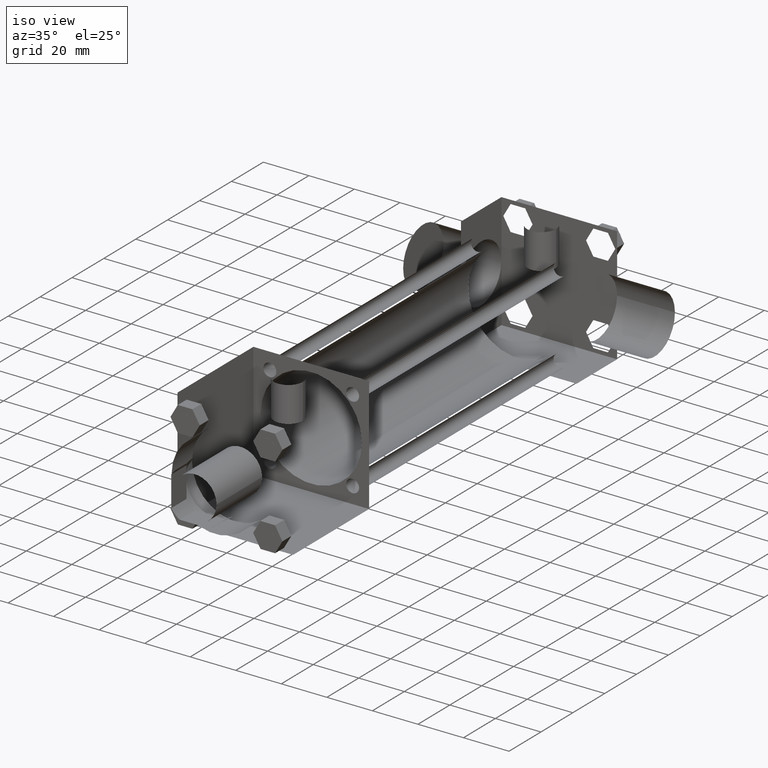
[diagram: clean part render]
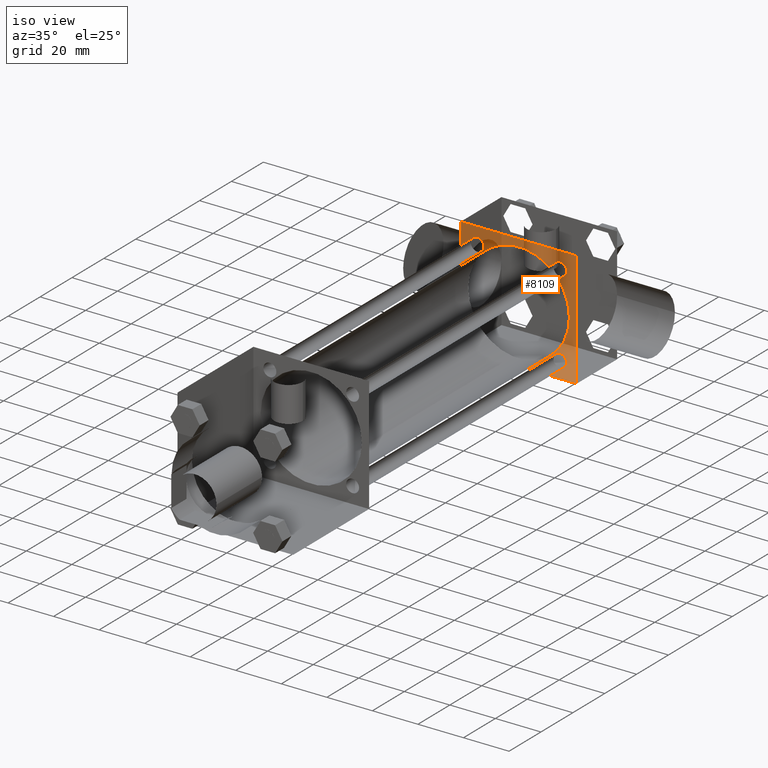
[diagram: same view with one face highlighted and labeled with its STEP entity id]
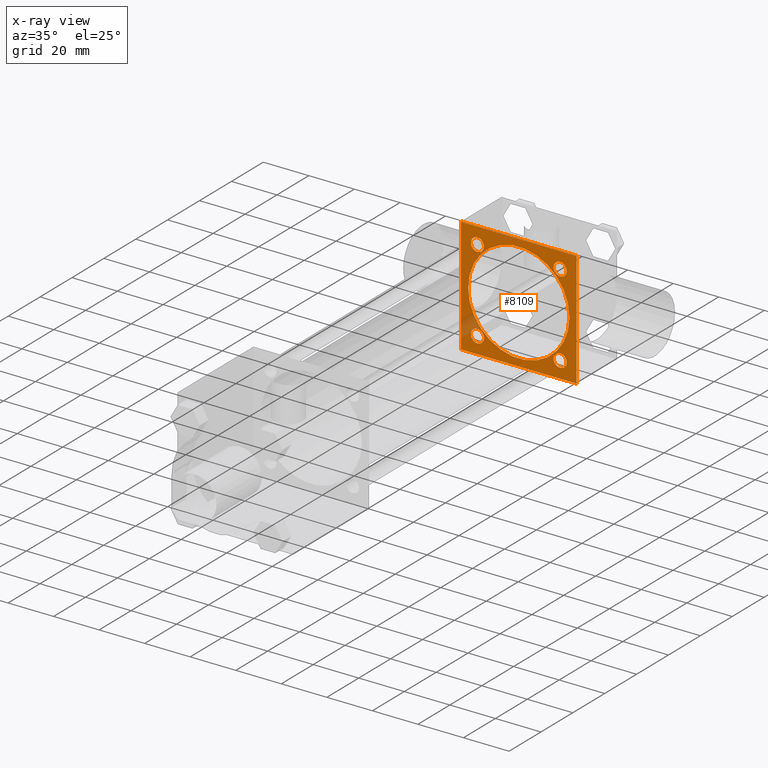
[diagram: x-ray of the same camera — body ghosted, the highlighted face saturated]
A machine part, iso view. The second image highlights one B-rep face of the part: STEP entity #8109.
The next image is the same camera in x-ray: the body ghosted, the highlighted face saturated — about 5% of this face is hidden behind the body in this view.
In plain terms, the highlighted planar face has unit normal (0, 1, 0).
Its self-contained STEP definition (entity closure, byte-faithful):
#2334=EDGE_CURVE('',#2340,#2340,#2335,.T.);
#2335=CIRCLE('',#2336,2.222500000E+001);
#2336=AXIS2_PLACEMENT_3D('',#2337,#2338,#2339);
#2337=CARTESIAN_POINT('',(0.000000000E+000,2.032000000E+002,0.000000000E+000));
#2338=DIRECTION('',(0.0E+000,1.0E+000,0.0E+000));
#2339=DIRECTION('',(1.0E+000,0.0E+000,0.0E+000));
#2340=VERTEX_POINT('',#2341);
#2341=CARTESIAN_POINT('',(2.222500000E+001,2.032000000E+002,0.000000000E+000));
#2416=EDGE_CURVE('',#2422,#2422,#2417,.T.);
#2417=CIRCLE('',#2418,2.857500000E+000);
#2418=AXIS2_PLACEMENT_3D('',#2419,#2420,#2421);
#2419=CARTESIAN_POINT('',(1.816100000E+001,2.032000000E+002,1.816100000E+001));
#2420=DIRECTION('',(0.0E+000,-1.0E+000,0.0E+000));
#2421=DIRECTION('',(-1.0E+000,0.0E+000,0.0E+000));
#2422=VERTEX_POINT('',#2423);
#2423=CARTESIAN_POINT('',(1.530350000E+001,2.032000000E+002,1.816100000E+001));
#2424=EDGE_CURVE('',#2430,#2430,#2425,.T.);
#2425=CIRCLE('',#2426,2.857500000E+000);
#2426=AXIS2_PLACEMENT_3D('',#2427,#2428,#2429);
#2427=CARTESIAN_POINT('',(-1.816100000E+001,2.032000000E+002,-1.816100000E+001));
#2428=DIRECTION('',(0.0E+000,1.0E+000,0.0E+000));
#2429=DIRECTION('',(1.0E+000,0.0E+000,0.0E+000));
#2430=VERTEX_POINT('',#2431);
#2431=CARTESIAN_POINT('',(-1.530350000E+001,2.032000000E+002,-1.816100000E+001));
#2440=EDGE_CURVE('',#2446,#2446,#2441,.T.);
#2441=CIRCLE('',#2442,2.857500000E+000);
#2442=AXIS2_PLACEMENT_3D('',#2443,#2444,#2445);
#2443=CARTESIAN_POINT('',(1.816100000E+001,2.032000000E+002,-1.816100000E+001));
#2444=DIRECTION('',(0.0E+000,1.0E+000,0.0E+000));
#2445=DIRECTION('',(1.0E+000,0.0E+000,0.0E+000));
#2446=VERTEX_POINT('',#2447);
#2447=CARTESIAN_POINT('',(2.101850000E+001,2.032000000E+002,-1.816100000E+001));
#2456=EDGE_CURVE('',#2462,#2462,#2457,.T.);
#2457=CIRCLE('',#2458,2.857500000E+000);
#2458=AXIS2_PLACEMENT_3D('',#2459,#2460,#2461);
#2459=CARTESIAN_POINT('',(-1.816100000E+001,2.032000000E+002,1.816100000E+001));
#2460=DIRECTION('',(0.0E+000,1.0E+000,0.0E+000));
#2461=DIRECTION('',(1.0E+000,0.0E+000,0.0E+000));
#2462=VERTEX_POINT('',#2463);
#2463=CARTESIAN_POINT('',(-1.530350000E+001,2.032000000E+002,1.816100000E+001));
#4563=FACE_OUTER_BOUND('',#4569,.T.);
#4564=FACE_BOUND('',#4570,.T.);
#4565=FACE_BOUND('',#4571,.T.);
#4566=FACE_BOUND('',#4572,.T.);
#4567=FACE_BOUND('',#4573,.T.);
#4568=FACE_BOUND('',#4574,.T.);
#4569=EDGE_LOOP('',(#4575));
#4570=EDGE_LOOP('',(#4576));
#4571=EDGE_LOOP('',(#4585));
#4572=EDGE_LOOP('',(#4594));
#4573=EDGE_LOOP('',(#4603,#4604,#4605,#4606));
#4574=EDGE_LOOP('',(#4635));
#4575=ORIENTED_EDGE('',*,*,#2334,.T.);
#4576=ORIENTED_EDGE('',*,*,#2456,.T.);
#4585=ORIENTED_EDGE('',*,*,#2440,.T.);
#4594=ORIENTED_EDGE('',*,*,#2424,.T.);
#4603=ORIENTED_EDGE('',*,*,#4607,.T.);
#4604=ORIENTED_EDGE('',*,*,#4616,.T.);
#4605=ORIENTED_EDGE('',*,*,#4623,.T.);
#4606=ORIENTED_EDGE('',*,*,#4630,.T.);
#4607=EDGE_CURVE('',#4612,#4613,#4608,.T.);
#4608=LINE('',#4609,#4610);
#4609=CARTESIAN_POINT('',(-2.540000000E+001,2.032000000E+002,-2.540000000E+001));
#4610=VECTOR('',#4611,1.0E+000);
#4611=DIRECTION('',(1.0E+000,0.0E+000,0.0E+000));
#4612=VERTEX_POINT('',#4614);
#4613=VERTEX_POINT('',#4615);
#4614=CARTESIAN_POINT('',(-2.540000000E+001,2.032000000E+002,-2.540000000E+001));
#4615=CARTESIAN_POINT('',(2.540000000E+001,2.032000000E+002,-2.540000000E+001));
#4616=EDGE_CURVE('',#4613,#4621,#4617,.T.);
#4617=LINE('',#4618,#4619);
#4618=CARTESIAN_POINT('',(2.540000000E+001,2.032000000E+002,-2.540000000E+001));
#4619=VECTOR('',#4620,1.0E+000);
#4620=DIRECTION('',(0.0E+000,0.0E+000,1.0E+000));
#4621=VERTEX_POINT('',#4622);
#4622=CARTESIAN_POINT('',(2.540000000E+001,2.032000000E+002,2.540000000E+001));
#4623=EDGE_CURVE('',#4621,#4628,#4624,.T.);
#4624=LINE('',#4625,#4626);
#4625=CARTESIAN_POINT('',(2.540000000E+001,2.032000000E+002,2.540000000E+001));
#4626=VECTOR('',#4627,1.0E+000);
#4627=DIRECTION('',(-1.0E+000,0.0E+000,0.0E+000));
#4628=VERTEX_POINT('',#4629);
#4629=CARTESIAN_POINT('',(-2.540000000E+001,2.032000000E+002,2.540000000E+001));
#4630=EDGE_CURVE('',#4628,#4612,#4631,.T.);
#4631=LINE('',#4632,#4633);
#4632=CARTESIAN_POINT('',(-2.540000000E+001,2.032000000E+002,2.540000000E+001));
#4633=VECTOR('',#4634,1.0E+000);
#4634=DIRECTION('',(0.0E+000,0.0E+000,-1.0E+000));
#4635=ORIENTED_EDGE('',*,*,#2416,.F.);
#4644=PLANE('',#4645);
#4645=AXIS2_PLACEMENT_3D('',#4646,#4647,#4648);
#4646=CARTESIAN_POINT('',(-2.540000000E+001,2.032000000E+002,-2.540000000E+001));
#4647=DIRECTION('',(0.0E+000,1.0E+000,0.0E+000));
#4648=DIRECTION('',(0.0E+000,0.0E+000,1.0E+000));
#8109=ADVANCED_FACE('',(#4563,#4564,#4565,#4566,#4567,#4568),#4644,.F.);